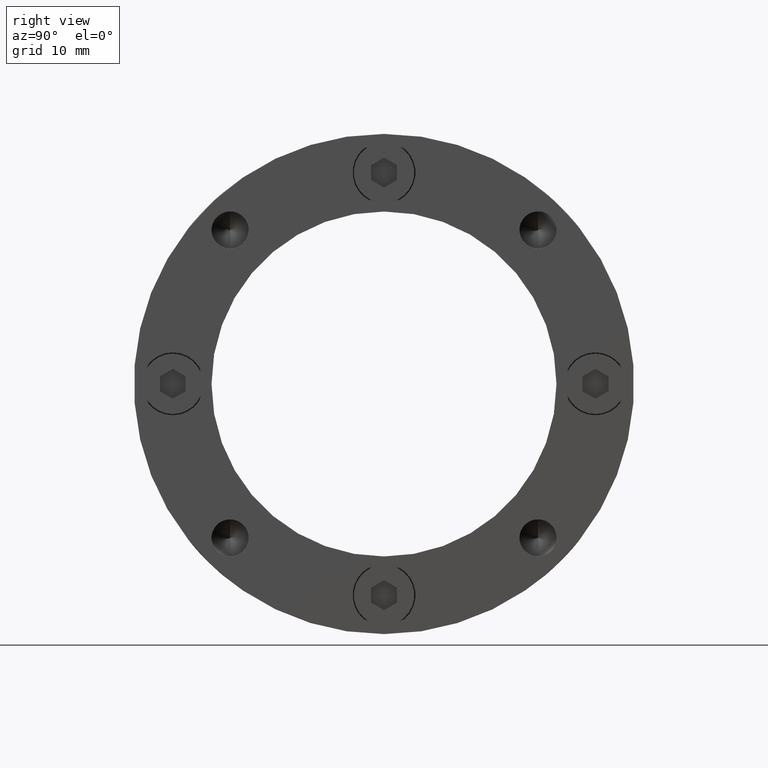
[diagram: clean part render]
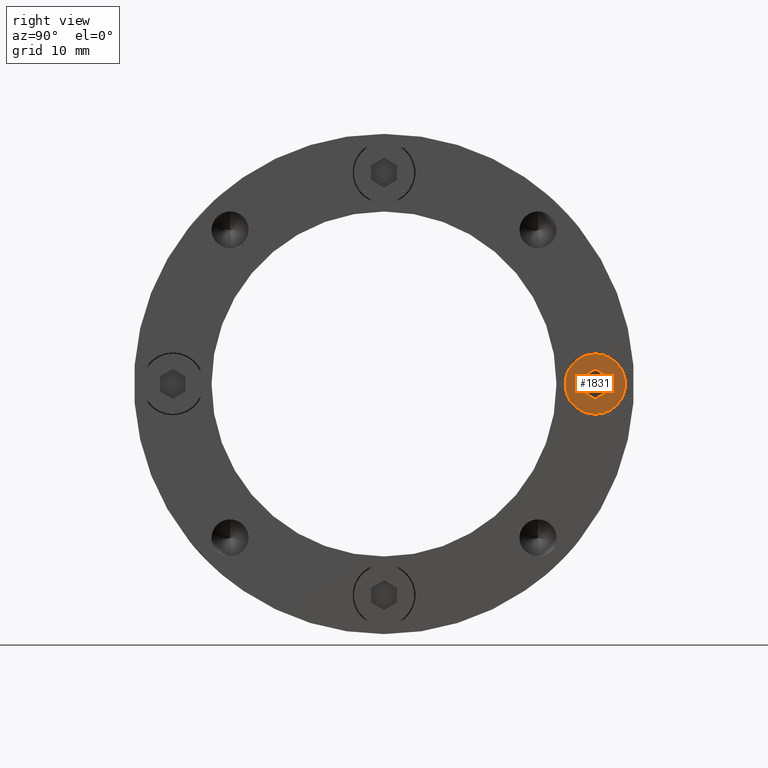
[diagram: same view with one face highlighted and labeled with its STEP entity id]
A machine part, right view. The second image highlights one B-rep face of the part: STEP entity #1831.
In plain terms, the highlighted planar face has unit normal (1, 0, 0).
Its self-contained STEP definition (entity closure, byte-faithful):
#178 = ORIENTED_EDGE ( 'NONE', *, *, #282, .T. ) ;
#179 = ORIENTED_EDGE ( 'NONE', *, *, #555, .T. ) ;
#181 = ORIENTED_EDGE ( 'NONE', *, *, #733, .F. ) ;
#182 = ORIENTED_EDGE ( 'NONE', *, *, #3449, .F. ) ;
#183 = ORIENTED_EDGE ( 'NONE', *, *, #278, .F. ) ;
#184 = ORIENTED_EDGE ( 'NONE', *, *, #734, .F. ) ;
#185 = ORIENTED_EDGE ( 'NONE', *, *, #731, .F. ) ;
#186 = ORIENTED_EDGE ( 'NONE', *, *, #564, .F. ) ;
#278 = EDGE_CURVE ( 'NONE', #521, #491, #568, .T. ) ;
#282 = EDGE_CURVE ( 'NONE', #479, #471, #1774, .T. ) ;
#329 = EDGE_LOOP ( 'NONE', ( #186, #185, #184, #183, #182, #181 ) ) ;
#332 = EDGE_LOOP ( 'NONE', ( #179, #178 ) ) ;
#471 = VERTEX_POINT ( 'NONE', #2080 ) ;
#473 = VERTEX_POINT ( 'NONE', #2082 ) ;
#479 = VERTEX_POINT ( 'NONE', #2087 ) ;
#480 = VERTEX_POINT ( 'NONE', #2088 ) ;
#481 = VERTEX_POINT ( 'NONE', #2089 ) ;
#483 = VERTEX_POINT ( 'NONE', #2090 ) ;
#491 = VERTEX_POINT ( 'NONE', #2093 ) ;
#521 = VERTEX_POINT ( 'NONE', #2095 ) ;
#555 = EDGE_CURVE ( 'NONE', #471, #479, #596, .T. ) ;
#564 = EDGE_CURVE ( 'NONE', #481, #473, #610, .T. ) ;
#565 = VECTOR ( 'NONE', #1537, 1000.000000000000100 ) ;
#568 = LINE ( 'NONE', #1562, #565 ) ;
#596 = CIRCLE ( 'NONE', #3109, 3.500000000000000000 ) ;
#610 = LINE ( 'NONE', #2199, #613 ) ;
#613 = VECTOR ( 'NONE', #2200, 1000.000000000000000 ) ;
#619 = LINE ( 'NONE', #2292, #622 ) ;
#620 = LINE ( 'NONE', #2329, #625 ) ;
#622 = VECTOR ( 'NONE', #2325, 1000.000000000000000 ) ;
#623 = LINE ( 'NONE', #2328, #627 ) ;
#625 = VECTOR ( 'NONE', #2326, 1000.000000000000000 ) ;
#627 = VECTOR ( 'NONE', #2334, 1000.000000000000000 ) ;
#731 = EDGE_CURVE ( 'NONE', #480, #481, #619, .T. ) ;
#733 = EDGE_CURVE ( 'NONE', #473, #483, #620, .T. ) ;
#734 = EDGE_CURVE ( 'NONE', #491, #480, #623, .T. ) ;
#1241 = DIRECTION ( 'NONE',  ( 0.0000000000000000000, 0.0000000000000000000, 1.000000000000000000 ) ) ;
#1263 = FACE_BOUND ( 'NONE', #329, .T. ) ;
#1266 = FACE_OUTER_BOUND ( 'NONE', #332, .T. ) ;
#1537 = DIRECTION ( 'NONE',  ( 0.8660254037844387100, 0.0000000000000000000, 0.4999999999999998300 ) ) ;
#1562 = CARTESIAN_POINT ( 'NONE',  ( -1.499999999999999100, 4.000000000000000000, 0.8660254037844393700 ) ) ;
#1572 = CARTESIAN_POINT ( 'NONE',  ( 0.0000000000000000000, 4.000000000000000000, 0.0000000000000000000 ) ) ;
#1573 = DIRECTION ( 'NONE',  ( 0.0000000000000000000, 1.000000000000000000, 0.0000000000000000000 ) ) ;
#1584 = LINE ( 'NONE', #3009, #1585 ) ;
#1585 = VECTOR ( 'NONE', #3010, 1000.000000000000000 ) ;
#1774 = CIRCLE ( 'NONE', #3101, 3.500000000000000000 ) ;
#1831 = ADVANCED_FACE ( 'NONE', ( #1263, #1266 ), #2553, .T. ) ;
#2080 = CARTESIAN_POINT ( 'NONE',  ( 0.0000000000000000000, 4.000000000000000000, -3.500000000000000000 ) ) ;
#2082 = CARTESIAN_POINT ( 'NONE',  ( -1.084202172485504400E-016, 4.000000000000000000, -1.732050807568877200 ) ) ;
#2087 = CARTESIAN_POINT ( 'NONE',  ( 4.286263797015736600E-016, 4.000000000000000000, 3.500000000000000000 ) ) ;
#2088 = CARTESIAN_POINT ( 'NONE',  ( 1.500000000000000000, 4.000000000000000000, 0.8660254037844387100 ) ) ;
#2089 = CARTESIAN_POINT ( 'NONE',  ( 1.499999999999999800, 4.000000000000000000, -0.8660254037844389300 ) ) ;
#2090 = CARTESIAN_POINT ( 'NONE',  ( -1.499999999999999800, 4.000000000000000000, -0.8660254037844386000 ) ) ;
#2093 = CARTESIAN_POINT ( 'NONE',  ( 4.046263255784118500E-016, 4.000000000000000000, 1.732050807568877400 ) ) ;
#2095 = CARTESIAN_POINT ( 'NONE',  ( -1.499999999999999100, 4.000000000000000000, 0.8660254037844393700 ) ) ;
#2148 = CARTESIAN_POINT ( 'NONE',  ( 0.0000000000000000000, 4.000000000000000000, 0.0000000000000000000 ) ) ;
#2149 = DIRECTION ( 'NONE',  ( 0.0000000000000000000, 1.000000000000000000, 0.0000000000000000000 ) ) ;
#2150 = DIRECTION ( 'NONE',  ( 0.0000000000000000000, 0.0000000000000000000, 1.000000000000000000 ) ) ;
#2199 = CARTESIAN_POINT ( 'NONE',  ( 1.499999999999999800, 4.000000000000000000, -0.8660254037844389300 ) ) ;
#2200 = DIRECTION ( 'NONE',  ( -0.8660254037844387100, 0.0000000000000000000, -0.4999999999999998300 ) ) ;
#2292 = CARTESIAN_POINT ( 'NONE',  ( 1.500000000000000000, 4.000000000000000000, 0.8660254037844387100 ) ) ;
#2325 = DIRECTION ( 'NONE',  ( -1.251928832280965900E-016, 0.0000000000000000000, -1.000000000000000000 ) ) ;
#2326 = DIRECTION ( 'NONE',  ( -0.8660254037844386000, 0.0000000000000000000, 0.5000000000000001100 ) ) ;
#2328 = CARTESIAN_POINT ( 'NONE',  ( 4.046263255784118500E-016, 4.000000000000000000, 1.732050807568877400 ) ) ;
#2329 = CARTESIAN_POINT ( 'NONE',  ( -1.767567020076689400E-016, 4.000000000000000000, -1.732050807568877200 ) ) ;
#2334 = DIRECTION ( 'NONE',  ( 0.8660254037844386000, 0.0000000000000000000, -0.5000000000000001100 ) ) ;
#2536 = CARTESIAN_POINT ( 'NONE',  ( 0.0000000000000000000, 4.000000000000000000, 0.0000000000000000000 ) ) ;
#2553 = PLANE ( 'NONE',  #3230 ) ;
#2555 = DIRECTION ( 'NONE',  ( 0.0000000000000000000, 1.000000000000000000, 0.0000000000000000000 ) ) ;
#2556 = DIRECTION ( 'NONE',  ( 0.0000000000000000000, -0.0000000000000000000, 1.000000000000000000 ) ) ;
#3009 = CARTESIAN_POINT ( 'NONE',  ( -1.499999999999999800, 4.000000000000000000, -0.8660254037844386000 ) ) ;
#3010 = DIRECTION ( 'NONE',  ( 3.755786496842897100E-016, 0.0000000000000000000, 1.000000000000000000 ) ) ;
#3101 = AXIS2_PLACEMENT_3D ( 'NONE', #1572, #1573, #1241 ) ;
#3109 = AXIS2_PLACEMENT_3D ( 'NONE', #2148, #2149, #2150 ) ;
#3230 = AXIS2_PLACEMENT_3D ( 'NONE', #2536, #2555, #2556 ) ;
#3449 = EDGE_CURVE ( 'NONE', #483, #521, #1584, .T. ) ;